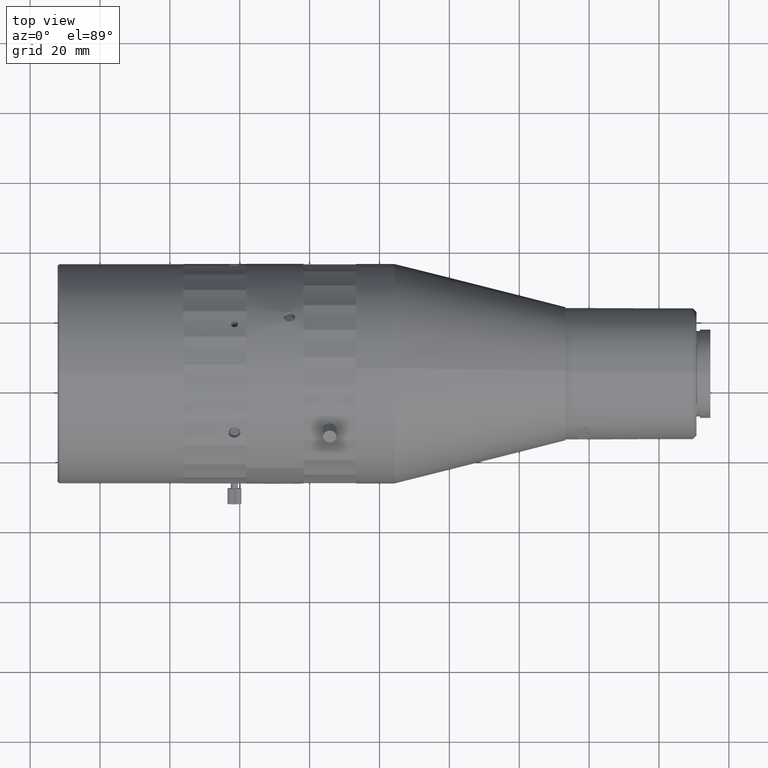
[diagram: clean part render]
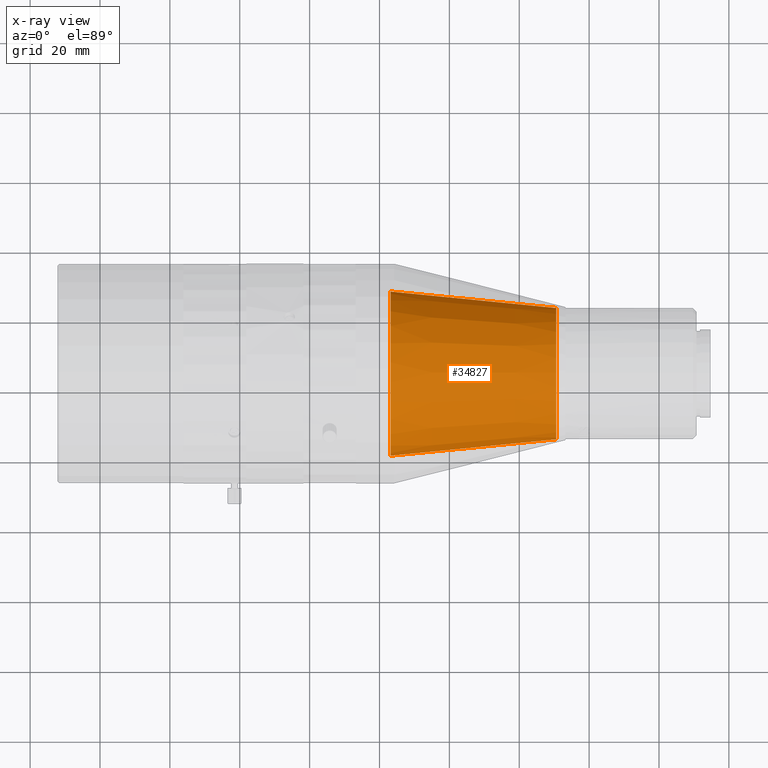
[diagram: x-ray — body ghosted, one internal face saturated and labeled with its STEP entity id]
A machine part, top view, then the same camera in x-ray: the body is ghosted and one INTERNAL B-rep face — a face not visible from any outside direction — is saturated and labeled: STEP entity #34827.
In plain terms, the highlighted conical surface has half-angle 5.664 deg.
Its self-contained STEP definition (entity closure, byte-faithful):
#1627 = CARTESIAN_POINT ( 'NONE',  ( -16.80363058595001036, 4.913691000558659816, 179.8427435715999820 ) ) ;
#1796 = ORIENTED_EDGE ( 'NONE', *, *, #38380, .T. ) ;
#1855 = DIRECTION ( 'NONE',  ( 0.000000000000000000, 0.000000000000000000, 1.000000000000000000 ) ) ;
#2559 = DIRECTION ( 'NONE',  ( -1.000000000000000000, -5.905441620345549746E-16, 0.000000000000000000 ) ) ;
#2640 = EDGE_LOOP ( 'NONE', ( #31969, #1796, #9631, #51103, #28462 ) ) ;
#3198 = DIRECTION ( 'NONE',  ( -0.9951179430834622419, -0.09869285360824801845, 0.000000000000000000 ) ) ;
#3625 = AXIS2_PLACEMENT_3D ( 'NONE', #39029, #46209, #1855 ) ;
#5214 = AXIS2_PLACEMENT_3D ( 'NONE', #21871, #2559, #22923 ) ;
#6568 = VERTEX_POINT ( 'NONE', #35696 ) ;
#7161 = LINE ( 'NONE', #10390, #21617 ) ;
#8686 = EDGE_CURVE ( 'NONE', #17526, #22402, #7161, .T. ) ;
#9631 = ORIENTED_EDGE ( 'NONE', *, *, #32681, .T. ) ;
#10390 = CARTESIAN_POINT ( 'NONE',  ( -16.80363058595001036, -18.58630899944540005, 179.8427435715999820 ) ) ;
#10645 = DIRECTION ( 'NONE',  ( 0.000000000000000000, 0.000000000000000000, 1.000000000000000000 ) ) ;
#13897 = DIRECTION ( 'NONE',  ( -1.000000000000000000, 0.000000000000000000, 0.000000000000000000 ) ) ;
#14183 = DIRECTION ( 'NONE',  ( 1.000000000000000000, 0.000000000000000000, 0.000000000000000000 ) ) ;
#14830 = VERTEX_POINT ( 'NONE', #40482 ) ;
#15028 = VECTOR ( 'NONE', #51226, 1000.000000000000114 ) ;
#16076 = VERTEX_POINT ( 'NONE', #41409 ) ;
#17526 = VERTEX_POINT ( 'NONE', #30991 ) ;
#20958 = CARTESIAN_POINT ( 'NONE',  ( -16.80363058595001036, -18.58630899944540005, 179.8427435715999820 ) ) ;
#21617 = VECTOR ( 'NONE', #3198, 1000.000000000000227 ) ;
#21871 = CARTESIAN_POINT ( 'NONE',  ( -16.80363058595001036, 4.913691000558659816, 179.8427435715999820 ) ) ;
#22121 = LINE ( 'NONE', #46370, #15028 ) ;
#22402 = VERTEX_POINT ( 'NONE', #20958 ) ;
#22923 = DIRECTION ( 'NONE',  ( 5.905441620345546788E-16, -1.000000000000000000, 0.000000000000000000 ) ) ;
#23236 = CONICAL_SURFACE ( 'NONE', #5214, 23.50000000000409983, 0.09885377594780432597 ) ;
#27005 = EDGE_CURVE ( 'NONE', #6568, #16076, #39508, .T. ) ;
#28462 = ORIENTED_EDGE ( 'NONE', *, *, #35853, .T. ) ;
#28495 = CIRCLE ( 'NONE', #3625, 18.79999999999970584 ) ;
#30991 = CARTESIAN_POINT ( 'NONE',  ( 30.58636941406779641, -13.88630899944105046, 179.8427435715999820 ) ) ;
#31969 = ORIENTED_EDGE ( 'NONE', *, *, #27005, .T. ) ;
#32681 = EDGE_CURVE ( 'NONE', #14830, #22402, #35762, .T. ) ;
#34201 = CARTESIAN_POINT ( 'NONE',  ( 30.58636941406779641, 4.913691000558659816, 179.8427435715999820 ) ) ;
#34366 = AXIS2_PLACEMENT_3D ( 'NONE', #34201, #13897, #10645 ) ;
#34827 = ADVANCED_FACE ( 'NONE', ( #49460 ), #23236, .T. ) ;
#35696 = CARTESIAN_POINT ( 'NONE',  ( 30.58636941406779641, 4.913691000558659816, 198.6427435715996808 ) ) ;
#35762 = CIRCLE ( 'NONE', #48566, 23.50000000000409983 ) ;
#35853 = EDGE_CURVE ( 'NONE', #17526, #6568, #28495, .T. ) ;
#38253 = DIRECTION ( 'NONE',  ( 0.000000000000000000, -1.000000000000000000, 0.000000000000000000 ) ) ;
#38380 = EDGE_CURVE ( 'NONE', #16076, #14830, #22121, .T. ) ;
#39029 = CARTESIAN_POINT ( 'NONE',  ( 30.58636941406779641, 4.913691000558659816, 179.8427435715999820 ) ) ;
#39508 = CIRCLE ( 'NONE', #34366, 18.79999999999970584 ) ;
#40482 = CARTESIAN_POINT ( 'NONE',  ( -16.80363058595001036, 28.41369100056274988, 179.8427435715999820 ) ) ;
#41409 = CARTESIAN_POINT ( 'NONE',  ( 30.58636941406779641, 23.71369100055834878, 179.8427435715999820 ) ) ;
#46209 = DIRECTION ( 'NONE',  ( -1.000000000000000000, 0.000000000000000000, 0.000000000000000000 ) ) ;
#46370 = CARTESIAN_POINT ( 'NONE',  ( -16.80363058595001036, 28.41369100056274988, 179.8427435715999820 ) ) ;
#48566 = AXIS2_PLACEMENT_3D ( 'NONE', #1627, #14183, #38253 ) ;
#49460 = FACE_OUTER_BOUND ( 'NONE', #2640, .T. ) ;
#51103 = ORIENTED_EDGE ( 'NONE', *, *, #8686, .F. ) ;
#51226 = DIRECTION ( 'NONE',  ( -0.9951179430834623529, 0.09869285360824743558, 1.208638872700590290E-17 ) ) ;